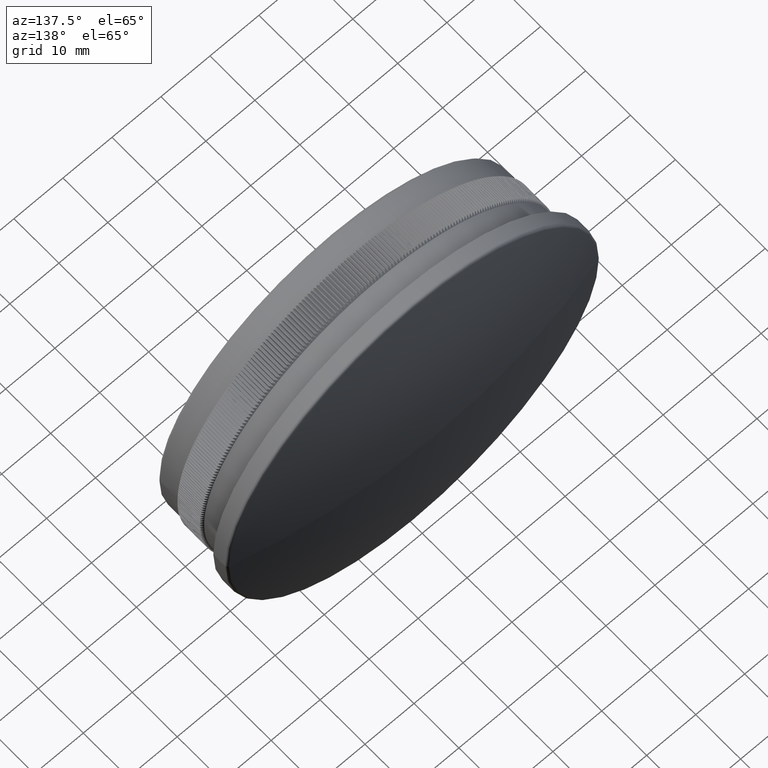
[diagram: clean part render]
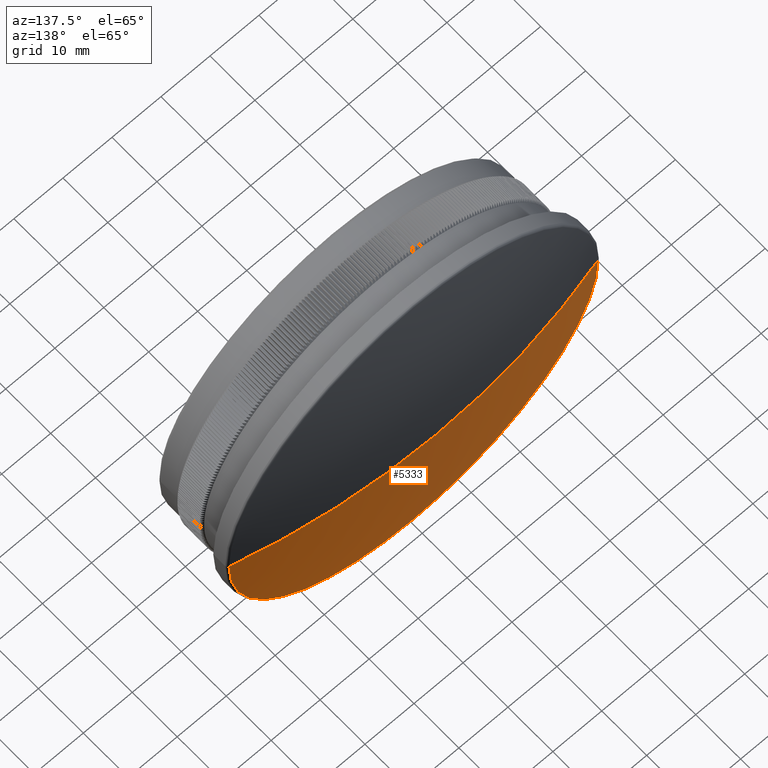
[diagram: same view with one face highlighted and labeled with its STEP entity id]
A machine part, auxiliary view. The second image highlights one B-rep face of the part: STEP entity #5333.
In plain terms, the highlighted spherical surface has radius 147.28 mm.
Its self-contained STEP definition (entity closure, byte-faithful):
#365 = DIRECTION ( 'NONE',  ( 1.000000000000000000, -3.222860182319315400E-015, 0.0000000000000000000 ) ) ;
#977 = ORIENTED_EDGE ( 'NONE', *, *, #39769, .F. ) ;
#4173 = CARTESIAN_POINT ( 'NONE',  ( 2.271580481082217300E-014, -124.2802499999998200, 0.0000000000000000000 ) ) ;
#4343 = CARTESIAN_POINT ( 'NONE',  ( 6.811452269998920300E-015, 18.09898642320067800, 0.0000000000000000000 ) ) ;
#4967 = EDGE_CURVE ( 'NONE', #10119, #30280, #18106, .T. ) ;
#5333 = ADVANCED_FACE ( 'NONE', ( #30646 ), #44858, .T. ) ;
#8911 = DIRECTION ( 'NONE',  ( -0.0000000000000000000, 0.0000000000000000000, 1.000000000000000000 ) ) ;
#8965 = ORIENTED_EDGE ( 'NONE', *, *, #4967, .F. ) ;
#9261 = DIRECTION ( 'NONE',  ( -1.000000000000000000, 0.0000000000000000000, 0.0000000000000000000 ) ) ;
#10119 = VERTEX_POINT ( 'NONE', #35436 ) ;
#11294 = CIRCLE ( 'NONE', #34895, 147.2802499999998200 ) ;
#12282 = VERTEX_POINT ( 'NONE', #35689 ) ;
#12719 = AXIS2_PLACEMENT_3D ( 'NONE', #4173, #39321, #9261 ) ;
#12858 = EDGE_LOOP ( 'NONE', ( #977, #48805, #8965 ) ) ;
#17857 = CARTESIAN_POINT ( 'NONE',  ( 37.67791230427800300, 18.09898642320055400, 0.0000000000000000000 ) ) ;
#18106 = CIRCLE ( 'NONE', #43555, 37.67791230427797400 ) ;
#19790 = CARTESIAN_POINT ( 'NONE',  ( 2.271580481082217300E-014, -124.2802499999998200, 0.0000000000000000000 ) ) ;
#21621 = CIRCLE ( 'NONE', #12719, 147.2802499999998200 ) ;
#26904 = EDGE_CURVE ( 'NONE', #12282, #30280, #21621, .T. ) ;
#30280 = VERTEX_POINT ( 'NONE', #17857 ) ;
#30546 = AXIS2_PLACEMENT_3D ( 'NONE', #43400, #8911, #43614 ) ;
#30646 = FACE_OUTER_BOUND ( 'NONE', #12858, .T. ) ;
#34895 = AXIS2_PLACEMENT_3D ( 'NONE', #19790, #50768, #35141 ) ;
#35141 = DIRECTION ( 'NONE',  ( 1.000000000000000000, 0.0000000000000000000, -1.224646799147353500E-016 ) ) ;
#35436 = CARTESIAN_POINT ( 'NONE',  ( -37.67791230427751300, 18.09898642320078800, 4.614213470198873300E-015 ) ) ;
#35689 = CARTESIAN_POINT ( 'NONE',  ( 5.096754636462685700E-013, 23.00000000000000700, 0.0000000000000000000 ) ) ;
#39321 = DIRECTION ( 'NONE',  ( 0.0000000000000000000, 0.0000000000000000000, -1.000000000000000000 ) ) ;
#39769 = EDGE_CURVE ( 'NONE', #12282, #10119, #11294, .T. ) ;
#43400 = CARTESIAN_POINT ( 'NONE',  ( 2.271580481082217300E-014, -124.2802499999998200, 0.0000000000000000000 ) ) ;
#43555 = AXIS2_PLACEMENT_3D ( 'NONE', #4343, #60303, #365 ) ;
#43614 = DIRECTION ( 'NONE',  ( 1.000000000000000000, -3.203720698910356500E-015, 0.0000000000000000000 ) ) ;
#44858 = SPHERICAL_SURFACE ( 'NONE', #30546, 147.2802499999998200 ) ;
#48805 = ORIENTED_EDGE ( 'NONE', *, *, #26904, .T. ) ;
#50768 = DIRECTION ( 'NONE',  ( 1.224646799147353200E-016, -3.974119664518481600E-031, 1.000000000000000000 ) ) ;
#60303 = DIRECTION ( 'NONE',  ( -3.245114972974590400E-015, -1.000000000000000000, -0.0000000000000000000 ) ) ;